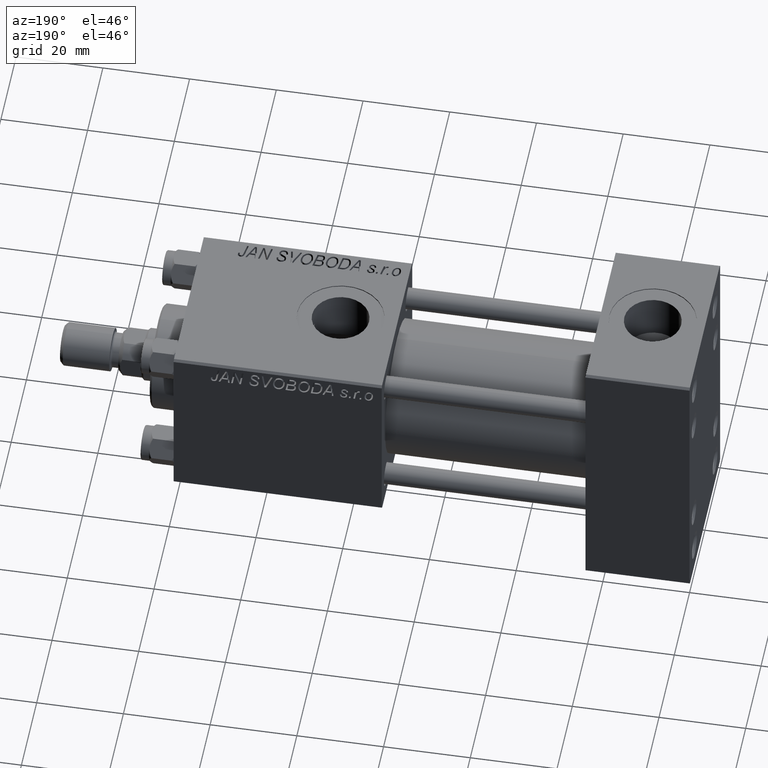
[diagram: clean part render]
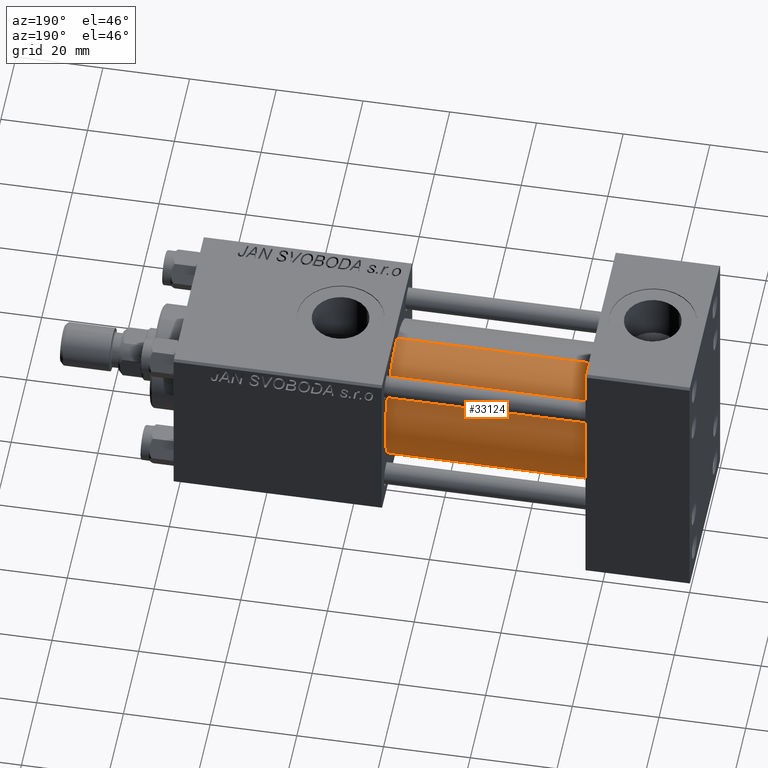
[diagram: same view with one face highlighted and labeled with its STEP entity id]
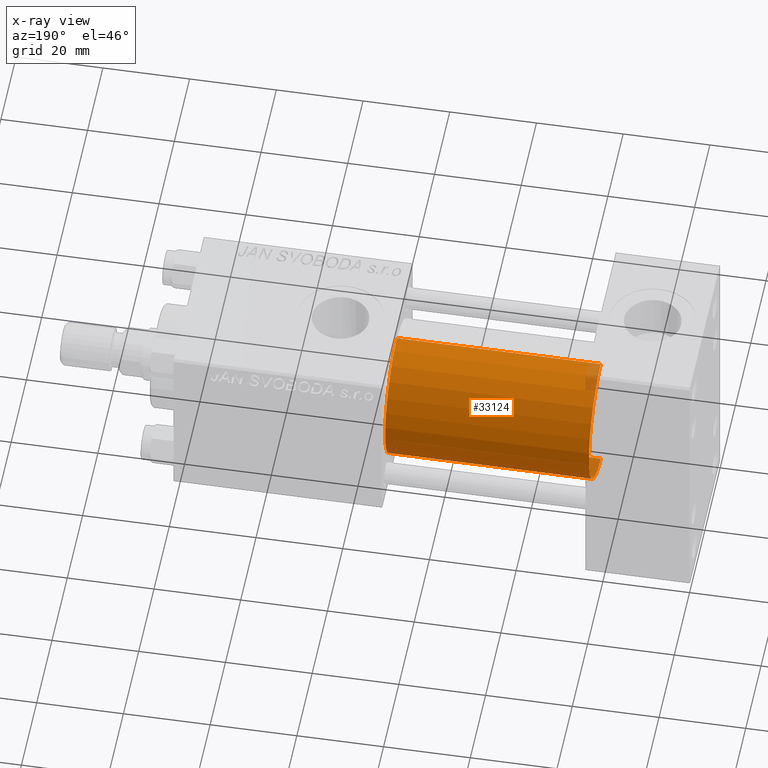
[diagram: x-ray of the same camera — body ghosted, the highlighted face saturated]
A machine part, auxiliary view. The second image highlights one B-rep face of the part: STEP entity #33124.
The next image is the same camera in x-ray: the body ghosted, the highlighted face saturated — about 2% of this face is hidden behind the body in this view.
In plain terms, the highlighted cylindrical surface (partial cylindrical patch) has radius 15.5 mm, axis along (-1, -0, -0).
Its self-contained STEP definition (entity closure, byte-faithful):
#1604 = VECTOR ( 'NONE', #6169, 1000.000000000000000 ) ;
#1750 = EDGE_LOOP ( 'NONE', ( #12281, #20595, #37159, #35352 ) ) ;
#1759 = VERTEX_POINT ( 'NONE', #23872 ) ;
#3187 = CIRCLE ( 'NONE', #28349, 15.50000000000000000 ) ;
#4450 = VERTEX_POINT ( 'NONE', #42621 ) ;
#4478 = DIRECTION ( 'NONE',  ( 0.000000000000000000, 0.000000000000000000, -1.000000000000000000 ) ) ;
#5598 = DIRECTION ( 'NONE',  ( -1.000000000000000000, -0.000000000000000000, -0.000000000000000000 ) ) ;
#5877 = DIRECTION ( 'NONE',  ( 1.000000000000000000, 0.000000000000000000, 0.000000000000000000 ) ) ;
#6169 = DIRECTION ( 'NONE',  ( -1.000000000000000000, -0.000000000000000000, -0.000000000000000000 ) ) ;
#7424 = CARTESIAN_POINT ( 'NONE',  ( 71.00000000000001421, -2.602085213965210642E-15, 15.50000000000000000 ) ) ;
#7471 = CARTESIAN_POINT ( 'NONE',  ( 71.00000000000001421, -7.038826752868131828E-16, -15.50000000000000000 ) ) ;
#12281 = ORIENTED_EDGE ( 'NONE', *, *, #27649, .F. ) ;
#13227 = CIRCLE ( 'NONE', #19710, 15.50000000000000000 ) ;
#17469 = EDGE_CURVE ( 'NONE', #4450, #32186, #26505, .T. ) ;
#17479 = CARTESIAN_POINT ( 'NONE',  ( 24.00000000000000000, -2.602085213965210642E-15, 15.50000000000000000 ) ) ;
#17624 = LINE ( 'NONE', #29838, #1604 ) ;
#19710 = AXIS2_PLACEMENT_3D ( 'NONE', #41522, #5877, #21401 ) ;
#19764 = CARTESIAN_POINT ( 'NONE',  ( 71.00000000000001421, -2.602085213965210642E-15, 0.000000000000000000 ) ) ;
#20595 = ORIENTED_EDGE ( 'NONE', *, *, #26187, .T. ) ;
#21124 = DIRECTION ( 'NONE',  ( 0.000000000000000000, 0.000000000000000000, 1.000000000000000000 ) ) ;
#21401 = DIRECTION ( 'NONE',  ( 0.000000000000000000, 0.000000000000000000, 1.000000000000000000 ) ) ;
#23665 = AXIS2_PLACEMENT_3D ( 'NONE', #32323, #5598, #21124 ) ;
#23872 = CARTESIAN_POINT ( 'NONE',  ( 24.00000000000000000, -7.038826752868131828E-16, -15.50000000000000000 ) ) ;
#24440 = CYLINDRICAL_SURFACE ( 'NONE', #23665, 15.50000000000000000 ) ;
#25456 = FACE_OUTER_BOUND ( 'NONE', #1750, .T. ) ;
#26187 = EDGE_CURVE ( 'NONE', #44557, #1759, #17624, .T. ) ;
#26505 = LINE ( 'NONE', #7424, #33104 ) ;
#27009 = DIRECTION ( 'NONE',  ( -1.000000000000000000, -0.000000000000000000, -0.000000000000000000 ) ) ;
#27649 = EDGE_CURVE ( 'NONE', #44557, #4450, #3187, .T. ) ;
#28349 = AXIS2_PLACEMENT_3D ( 'NONE', #19764, #35304, #4478 ) ;
#29838 = CARTESIAN_POINT ( 'NONE',  ( 71.00000000000001421, -7.038826752868131828E-16, -15.50000000000000000 ) ) ;
#32186 = VERTEX_POINT ( 'NONE', #17479 ) ;
#32323 = CARTESIAN_POINT ( 'NONE',  ( 71.00000000000001421, -2.602085213965210642E-15, 0.000000000000000000 ) ) ;
#33104 = VECTOR ( 'NONE', #27009, 1000.000000000000000 ) ;
#33124 = ADVANCED_FACE ( 'NONE', ( #25456 ), #24440, .T. ) ;
#35304 = DIRECTION ( 'NONE',  ( 1.000000000000000000, 0.000000000000000000, 0.000000000000000000 ) ) ;
#35352 = ORIENTED_EDGE ( 'NONE', *, *, #17469, .F. ) ;
#36642 = EDGE_CURVE ( 'NONE', #1759, #32186, #13227, .T. ) ;
#37159 = ORIENTED_EDGE ( 'NONE', *, *, #36642, .T. ) ;
#41522 = CARTESIAN_POINT ( 'NONE',  ( 24.00000000000000000, -2.602085213965210642E-15, 0.000000000000000000 ) ) ;
#42621 = CARTESIAN_POINT ( 'NONE',  ( 71.00000000000001421, -2.602085213965210642E-15, 15.50000000000000000 ) ) ;
#44557 = VERTEX_POINT ( 'NONE', #7471 ) ;